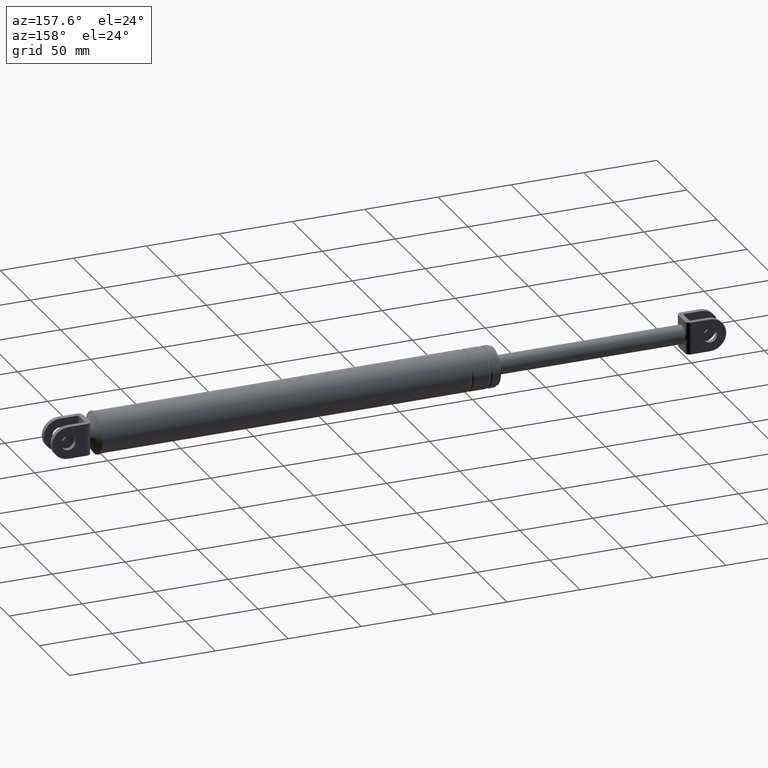
[diagram: clean part render]
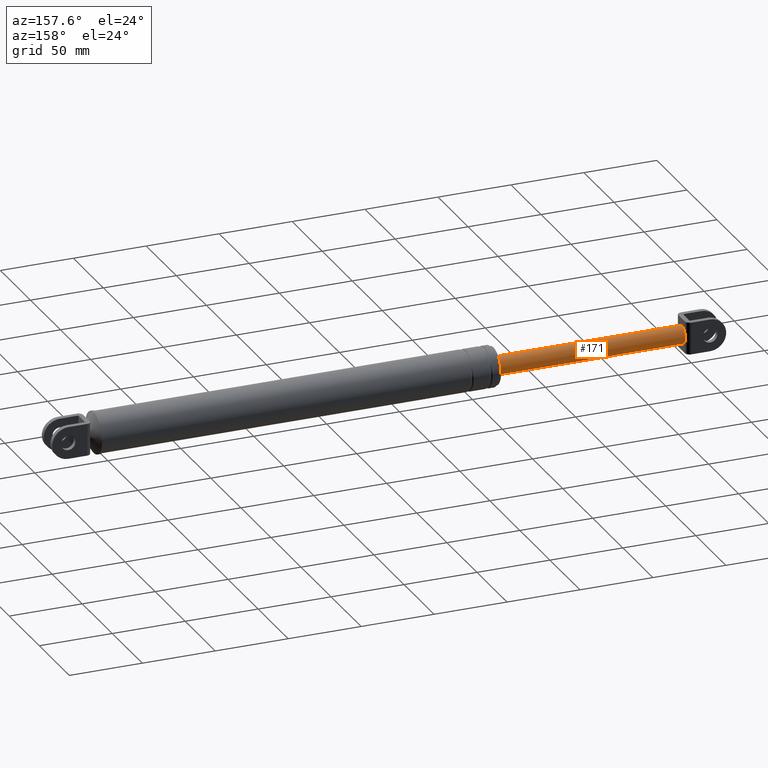
[diagram: same view with one face highlighted and labeled with its STEP entity id]
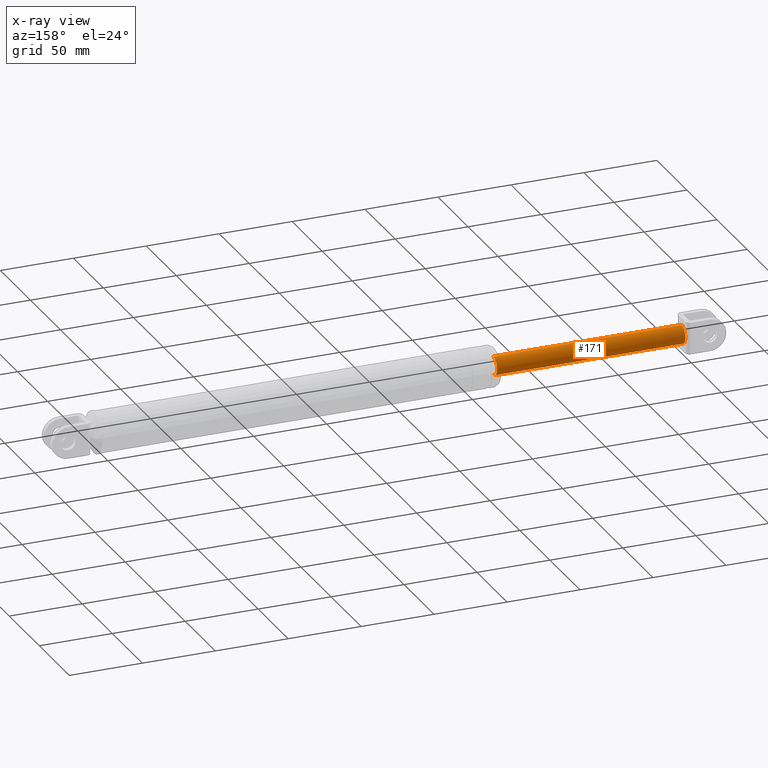
[diagram: x-ray of the same camera — body ghosted, the highlighted face saturated]
A machine part, auxiliary view. The second image highlights one B-rep face of the part: STEP entity #171.
The next image is the same camera in x-ray: the body ghosted, the highlighted face saturated — about 0% of this face is hidden behind the body in this view.
In plain terms, the highlighted cylindrical surface (edge-blend (fillet) strip) has radius 6.25 mm, axis along (-1, 0, 0).
Its self-contained STEP definition (entity closure, byte-faithful):
#171=ADVANCED_FACE('',(#777),#776,.T.);
#776=CYLINDRICAL_SURFACE('',#2085,6.25000000000E+000);
#777=FACE_OUTER_BOUND('',#2086,.T.);
#2082=CARTESIAN_POINT('',(-3.32460913929E+000,-3.41042228289E-013,1.89728345508E+002));
#2083=DIRECTION('',(-1.00000000000E+000,8.03887338846E-016,5.15686441477E-029));
#2084=DIRECTION('',(9.63272986039E-031,6.53473622425E-014,-1.00000000000E+000));
#2085=AXIS2_PLACEMENT_3D('',#2082,#2083,#2084);
#2086=EDGE_LOOP('',(#2397,#2398,#2399,#2400,#2401,#2402));
#2397=ORIENTED_EDGE('',*,*,#2568,.F.);
#2398=ORIENTED_EDGE('',*,*,#2569,.T.);
#2399=ORIENTED_EDGE('',*,*,#2551,.F.);
#2400=ORIENTED_EDGE('',*,*,#2564,.F.);
#2401=ORIENTED_EDGE('',*,*,#2557,.F.);
#2402=ORIENTED_EDGE('',*,*,#2570,.F.);
#2551=EDGE_CURVE('',#3402,#3454,#3455,.T.);
#2557=EDGE_CURVE('',#3488,#3495,#3496,.T.);
#2564=EDGE_CURVE('',#3495,#3402,#3541,.T.);
#2568=EDGE_CURVE('',#3560,#3559,#3567,.T.);
#2569=EDGE_CURVE('',#3560,#3454,#3573,.T.);
#2570=EDGE_CURVE('',#3559,#3488,#3579,.T.);
#3402=VERTEX_POINT('',#4151);
#3454=VERTEX_POINT('',#4181);
#3455=CIRCLE('',#4185,6.25000000000E+000);
#3488=VERTEX_POINT('',#4204);
#3495=VERTEX_POINT('',#4209);
#3496=CIRCLE('',#4213,6.25000000000E+000);
#3541=(BOUNDED_CURVE() B_SPLINE_CURVE(3,(#4245,#4246,#4247,#4248,#4249,#4250,#4251,#4252,#4253,#4254,#4255,#4256,#4257,#4258),.UNSPECIFIED.,.F.,.F.) B_SPLINE_CURVE_WITH_KNOTS((4,2,2,2,2,2,4),(4.40527553380E-016,1.53874817323E-003,2.30812225985E-003,3.07749634646E-003,3.84687043308E-003,4.61624451969E-003,6.15499269292E-003),.UNSPECIFIED.) CURVE() GEOMETRIC_REPRESENTATION_ITEM() RATIONAL_B_SPLINE_CURVE((1.00000000000E+000,1.00000000000E+000,1.00000000000E+000,1.00000000000E+000,1.00000000000E+000,1.00000000000E+000,1.00000000000E+000,1.00000000000E+000,1.00000000000E+000,1.00000000000E+000,1.00000000000E+000,1.00000000000E+000,1.00000000000E+000,1.00000000000E+000)) REPRESENTATION_ITEM('') );
#3559=VERTEX_POINT('',#4277);
#3560=VERTEX_POINT('',#4278);
#3567=CIRCLE('',#4286,6.25000000000E+000);
#3573=(BOUNDED_CURVE() B_SPLINE_CURVE(1,(#4287,#4288),.UNSPECIFIED.,.F.,.F.) B_SPLINE_CURVE_WITH_KNOTS((2,2),(6.71140225601E-002,9.32884912048E-001),.UNSPECIFIED.) CURVE() GEOMETRIC_REPRESENTATION_ITEM() RATIONAL_B_SPLINE_CURVE((1.00000000000E+000,1.00000000000E+000)) REPRESENTATION_ITEM('') );
#3579=(BOUNDED_CURVE() B_SPLINE_CURVE(1,(#4289,#4290),.UNSPECIFIED.,.F.,.F.) B_SPLINE_CURVE_WITH_KNOTS((2,2),(6.71140224430E-002,9.32884911957E-001),.UNSPECIFIED.) CURVE() GEOMETRIC_REPRESENTATION_ITEM() RATIONAL_B_SPLINE_CURVE((7.50000000000E-001,7.50000000000E-001)) REPRESENTATION_ITEM('') );
#4151=CARTESIAN_POINT('',(6.67539086071E+000,5.49999700000E+000,1.86759754428E+002));
#4181=CARTESIAN_POINT('',(6.67539086071E+000,-4.21341194098E-012,1.83478345508E+002));
#4182=CARTESIAN_POINT('',(6.67539086071E+000,-6.90558721317E-013,1.89728345508E+002));
#4183=DIRECTION('',(-1.00000000000E+000,0.00000000000E+000,0.00000000000E+000));
#4184=DIRECTION('',(-0.00000000000E+000,-8.79999520000E-001,4.74974572793E-001));
#4185=AXIS2_PLACEMENT_3D('',#4182,#4183,#4184);
#4204=CARTESIAN_POINT('',(6.67539086071E+000,7.89965395271E-007,1.95978345508E+002));
#4209=CARTESIAN_POINT('',(6.67539086071E+000,5.49999700000E+000,1.92696936588E+002));
#4210=CARTESIAN_POINT('',(6.67539086071E+000,2.88657986403E-013,1.89728345508E+002));
#4211=DIRECTION('',(-1.00000000000E+000,-4.94022366089E-017,-9.15289933251E-017));
#4212=DIRECTION('',(4.93038065763E-032,8.79999520000E-001,-4.74974572793E-001));
#4213=AXIS2_PLACEMENT_3D('',#4210,#4211,#4212);
#4245=CARTESIAN_POINT('',(6.67539086071E+000,5.49999700000E+000,1.92696936588E+002));
#4246=CARTESIAN_POINT('',(6.67539086071E+000,5.74712672540E+000,1.92239071994E+002));
#4247=CARTESIAN_POINT('',(6.67545011825E+000,5.93278395213E+000,1.91760408727E+002));
#4248=CARTESIAN_POINT('',(6.67535138553E+000,6.12211317325E+000,1.91012248495E+002));
#4249=CARTESIAN_POINT('',(6.67523263651E+000,6.17036546732E+000,1.90755998090E+002));
#4250=CARTESIAN_POINT('',(6.67524902185E+000,6.23420315095E+000,1.90242340549E+002));
#4251=CARTESIAN_POINT('',(6.67538974731E+000,6.24996417012E+000,1.89985691434E+002));
#4252=CARTESIAN_POINT('',(6.67539196370E+000,6.25003570831E+000,1.89472742889E+002));
#4253=CARTESIAN_POINT('',(6.67525564415E+000,6.23434520623E+000,1.89216443470E+002));
#4254=CARTESIAN_POINT('',(6.67523739916E+000,6.17091822675E+000,1.88704200945E+002));
#4255=CARTESIAN_POINT('',(6.67535117024E+000,6.12273081906E+000,1.88447246345E+002));
#4256=CARTESIAN_POINT('',(6.67544982284E+000,5.93312941259E+000,1.87696925717E+002));
#4257=CARTESIAN_POINT('',(6.67539086071E+000,5.74712672457E+000,1.87217619020E+002));
#4258=CARTESIAN_POINT('',(6.67539086071E+000,5.49999700000E+000,1.86759754428E+002));
#4277=CARTESIAN_POINT('',(1.35675390861E+002,-4.52782568388E-013,1.95978345508E+002));
#4278=CARTESIAN_POINT('',(1.35675390861E+002,-4.51786756154E-013,1.83478345508E+002));
#4283=CARTESIAN_POINT('',(1.35675390861E+002,-4.52782568388E-013,1.89728345508E+002));
#4284=DIRECTION('',(1.00000000000E+000,0.00000000000E+000,-0.00000000000E+000));
#4285=DIRECTION('',(0.00000000000E+000,-1.22460635382E-016,1.00000000000E+000));
#4286=AXIS2_PLACEMENT_3D('',#4283,#4284,#4285);
#4287=CARTESIAN_POINT('',(1.35675390843E+002,-4.43615543586E-014,1.83478345508E+002));
#4288=CARTESIAN_POINT('',(6.67539084714E+000,5.93399123494E-014,1.83478345508E+002));
#4289=CARTESIAN_POINT('',(1.35675390861E+002,-8.60887308377E-013,1.95978345508E+002));
#4290=CARTESIAN_POINT('',(6.67539086071E+000,-7.57077840613E-013,1.95978345508E+002));